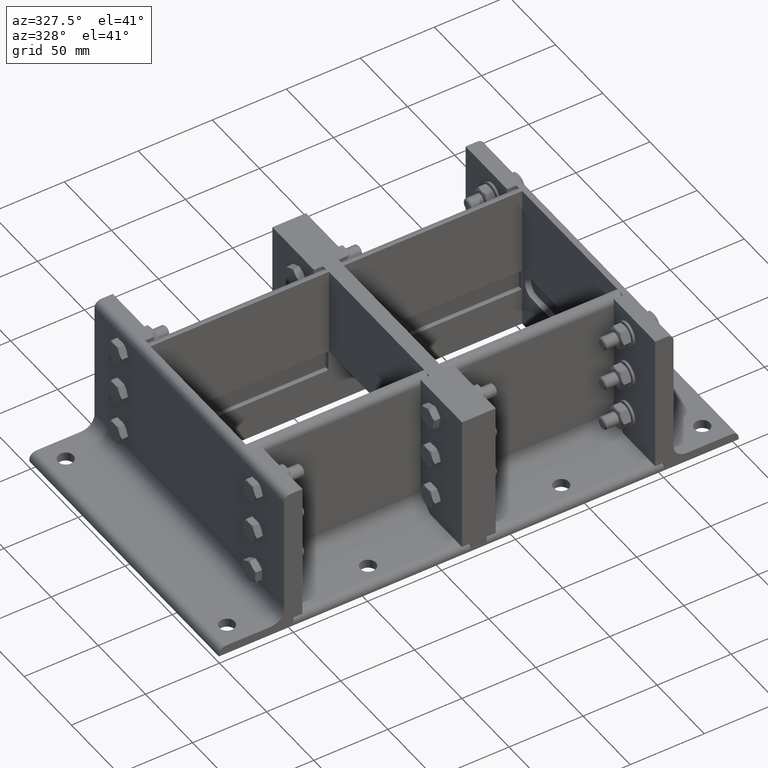
[diagram: clean part render]
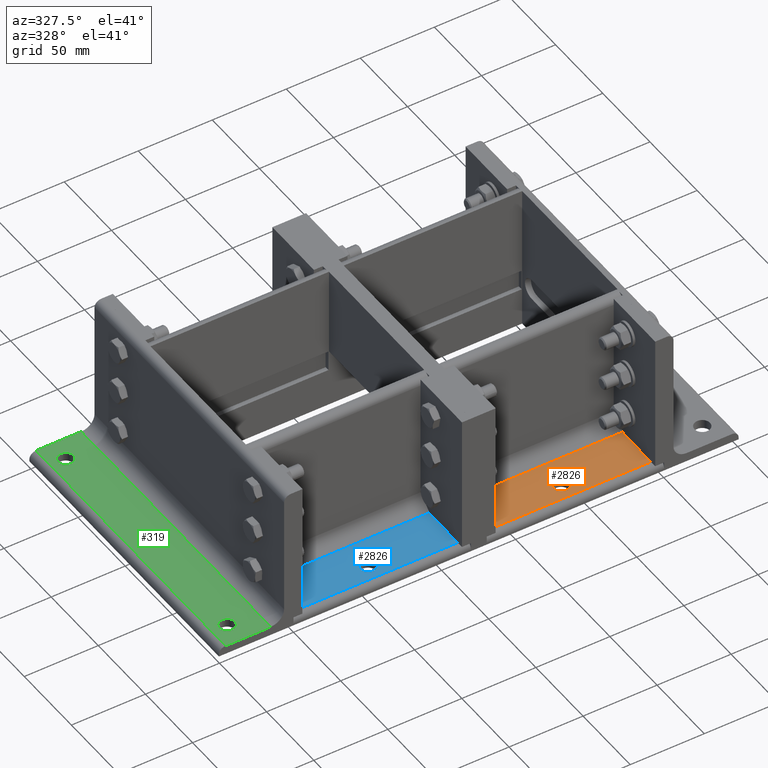
[diagram: same view with three faces highlighted in distinct colors, each labeled with its STEP entity id]
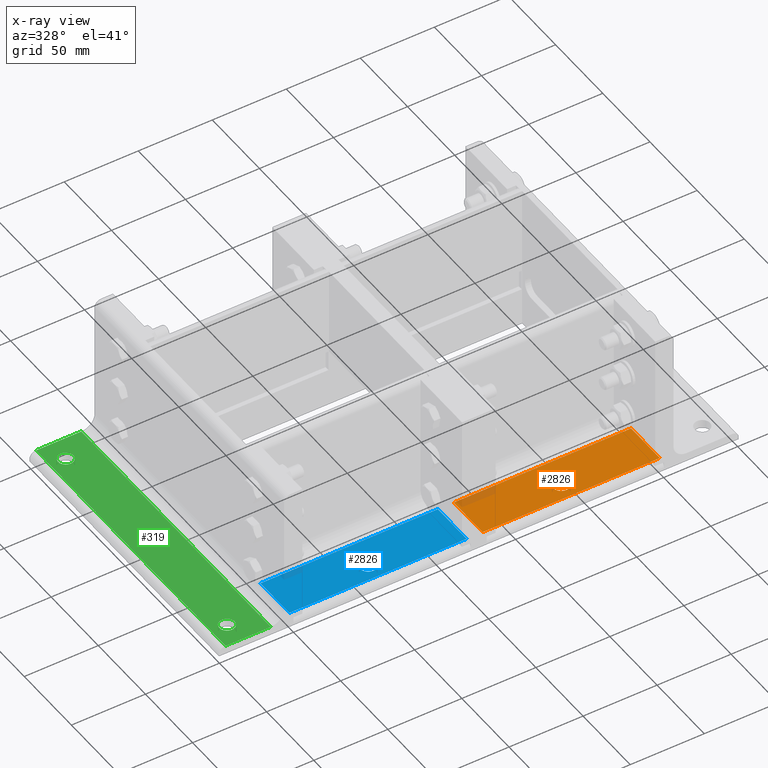
[diagram: x-ray of the same camera — body ghosted, the three highlighted faces saturated]
A machine part, auxiliary view with three faces highlighted in distinct colors.
The next image is the same camera in x-ray (body ghosted, the three faces saturated) — at least one of them is partly hidden behind the body in this view.
Their STEP definitions:

[orange] entity #2826 — the highlighted planar face has unit normal (-0, 0, 1).
#2527=CARTESIAN_POINT('',(34.250000000000007,59.900000000000006,-9.325873E-016));
#2528=VERTEX_POINT('',#2527);
#2529=CARTESIAN_POINT('',(29.000000000000007,59.900000000000006,0.0));
#2530=DIRECTION('',(0.0,0.0,-1.0));
#2531=DIRECTION('',(-1.0,0.0,0.0));
#2532=AXIS2_PLACEMENT_3D('',#2529,#2530,#2531);
#2533=CIRCLE('',#2532,5.25);
#2534=EDGE_CURVE('',#2528,#2528,#2533,.T.);
#2693=CARTESIAN_POINT('',(9.0,119.80000000000001,-2.753479E-015));
#2694=VERTEX_POINT('',#2693);
#2702=CARTESIAN_POINT('',(39.5,119.80000000000001,-1.208471E-014));
#2703=VERTEX_POINT('',#2702);
#2704=CARTESIAN_POINT('',(8.999999999999993,119.80000000000001,-2.753479E-015));
#2705=DIRECTION('',(1.0,0.0,0.0));
#2706=VECTOR('',#2705,30.500000000000007);
#2707=LINE('',#2704,#2706);
#2708=EDGE_CURVE('',#2694,#2703,#2707,.T.);
#2775=CARTESIAN_POINT('',(9.0,0.0,-2.753479E-015));
#2776=VERTEX_POINT('',#2775);
#2784=CARTESIAN_POINT('',(9.0,0.0,-2.220446E-015));
#2785=DIRECTION('',(0.0,1.0,0.0));
#2786=VECTOR('',#2785,119.80000000000001);
#2787=LINE('',#2784,#2786);
#2788=EDGE_CURVE('',#2776,#2694,#2787,.T.);
#2800=CARTESIAN_POINT('',(0.0,0.0,1.972152E-030));
#2801=DIRECTION('',(0.0,0.0,1.0));
#2802=DIRECTION('',(1.0,0.0,0.0));
#2803=AXIS2_PLACEMENT_3D('',#2800,#2801,#2802);
#2804=PLANE('',#2803);
#2805=ORIENTED_EDGE('',*,*,#2788,.F.);
#2806=CARTESIAN_POINT('',(39.5,0.0,-1.208471E-014));
#2807=VERTEX_POINT('',#2806);
#2808=CARTESIAN_POINT('',(39.5,0.0,-1.208471E-014));
#2809=DIRECTION('',(-1.0,0.0,0.0));
#2810=VECTOR('',#2809,30.500000000000007);
#2811=LINE('',#2808,#2810);
#2812=EDGE_CURVE('',#2807,#2776,#2811,.T.);
#2813=ORIENTED_EDGE('',*,*,#2812,.F.);
#2814=CARTESIAN_POINT('',(39.5,119.80000000000001,-1.221245E-014));
#2815=DIRECTION('',(0.0,-1.0,0.0));
#2816=VECTOR('',#2815,119.80000000000001);
#2817=LINE('',#2814,#2816);
#2818=EDGE_CURVE('',#2703,#2807,#2817,.T.);
#2819=ORIENTED_EDGE('',*,*,#2818,.F.);
#2820=ORIENTED_EDGE('',*,*,#2708,.F.);
#2821=EDGE_LOOP('',(#2805,#2813,#2819,#2820));
#2822=FACE_OUTER_BOUND('',#2821,.T.);
#2823=ORIENTED_EDGE('',*,*,#2534,.T.);
#2824=EDGE_LOOP('',(#2823));
#2825=FACE_BOUND('',#2824,.T.);
#2826=ADVANCED_FACE('',(#2822,#2825),#2804,.T.);

[blue] entity #2826 — the highlighted planar face has unit normal (-0, 0, 1).
#2527=CARTESIAN_POINT('',(34.250000000000007,59.900000000000006,-9.325873E-016));
#2528=VERTEX_POINT('',#2527);
#2529=CARTESIAN_POINT('',(29.000000000000007,59.900000000000006,0.0));
#2530=DIRECTION('',(0.0,0.0,-1.0));
#2531=DIRECTION('',(-1.0,0.0,0.0));
#2532=AXIS2_PLACEMENT_3D('',#2529,#2530,#2531);
#2533=CIRCLE('',#2532,5.25);
#2534=EDGE_CURVE('',#2528,#2528,#2533,.T.);
#2693=CARTESIAN_POINT('',(9.0,119.80000000000001,-2.753479E-015));
#2694=VERTEX_POINT('',#2693);
#2702=CARTESIAN_POINT('',(39.5,119.80000000000001,-1.208471E-014));
#2703=VERTEX_POINT('',#2702);
#2704=CARTESIAN_POINT('',(8.999999999999993,119.80000000000001,-2.753479E-015));
#2705=DIRECTION('',(1.0,0.0,0.0));
#2706=VECTOR('',#2705,30.500000000000007);
#2707=LINE('',#2704,#2706);
#2708=EDGE_CURVE('',#2694,#2703,#2707,.T.);
#2775=CARTESIAN_POINT('',(9.0,0.0,-2.753479E-015));
#2776=VERTEX_POINT('',#2775);
#2784=CARTESIAN_POINT('',(9.0,0.0,-2.220446E-015));
#2785=DIRECTION('',(0.0,1.0,0.0));
#2786=VECTOR('',#2785,119.80000000000001);
#2787=LINE('',#2784,#2786);
#2788=EDGE_CURVE('',#2776,#2694,#2787,.T.);
#2800=CARTESIAN_POINT('',(0.0,0.0,1.972152E-030));
#2801=DIRECTION('',(0.0,0.0,1.0));
#2802=DIRECTION('',(1.0,0.0,0.0));
#2803=AXIS2_PLACEMENT_3D('',#2800,#2801,#2802);
#2804=PLANE('',#2803);
#2805=ORIENTED_EDGE('',*,*,#2788,.F.);
#2806=CARTESIAN_POINT('',(39.5,0.0,-1.208471E-014));
#2807=VERTEX_POINT('',#2806);
#2808=CARTESIAN_POINT('',(39.5,0.0,-1.208471E-014));
#2809=DIRECTION('',(-1.0,0.0,0.0));
#2810=VECTOR('',#2809,30.500000000000007);
#2811=LINE('',#2808,#2810);
#2812=EDGE_CURVE('',#2807,#2776,#2811,.T.);
#2813=ORIENTED_EDGE('',*,*,#2812,.F.);
#2814=CARTESIAN_POINT('',(39.5,119.80000000000001,-1.221245E-014));
#2815=DIRECTION('',(0.0,-1.0,0.0));
#2816=VECTOR('',#2815,119.80000000000001);
#2817=LINE('',#2814,#2816);
#2818=EDGE_CURVE('',#2703,#2807,#2817,.T.);
#2819=ORIENTED_EDGE('',*,*,#2818,.F.);
#2820=ORIENTED_EDGE('',*,*,#2708,.F.);
#2821=EDGE_LOOP('',(#2805,#2813,#2819,#2820));
#2822=FACE_OUTER_BOUND('',#2821,.T.);
#2823=ORIENTED_EDGE('',*,*,#2534,.T.);
#2824=EDGE_LOOP('',(#2823));
#2825=FACE_BOUND('',#2824,.T.);
#2826=ADVANCED_FACE('',(#2822,#2825),#2804,.T.);

[green] entity #319 — the highlighted planar face has unit normal (-0, -0, 1).
#190=CARTESIAN_POINT('',(29.749999999999993,15.0,6.000000000000004));
#191=VERTEX_POINT('',#190);
#192=CARTESIAN_POINT('',(34.999999999999993,15.0,6.000000000000004));
#193=DIRECTION('',(0.0,0.0,-1.0));
#194=DIRECTION('',(1.0,0.0,0.0));
#195=AXIS2_PLACEMENT_3D('',#192,#193,#194);
#196=CIRCLE('',#195,5.25);
#197=EDGE_CURVE('',#191,#191,#196,.T.);
#218=CARTESIAN_POINT('',(29.75,186.0,6.000000000000004));
#219=VERTEX_POINT('',#218);
#220=CARTESIAN_POINT('',(35.0,186.0,6.000000000000004));
#221=DIRECTION('',(0.0,0.0,-1.0));
#222=DIRECTION('',(1.0,0.0,0.0));
#223=AXIS2_PLACEMENT_3D('',#220,#221,#222);
#224=CIRCLE('',#223,5.25);
#225=EDGE_CURVE('',#219,#219,#224,.T.);
#248=CARTESIAN_POINT('',(15.0,0.0,6.000000000000001));
#249=VERTEX_POINT('',#248);
#257=CARTESIAN_POINT('',(15.0,201.0,6.000000000000001));
#258=VERTEX_POINT('',#257);
#259=CARTESIAN_POINT('',(14.999999999999998,0.0,6.000000000000001));
#260=DIRECTION('',(0.0,1.0,0.0));
#261=VECTOR('',#260,201.0);
#262=LINE('',#259,#261);
#263=EDGE_CURVE('',#249,#258,#262,.T.);
#283=CARTESIAN_POINT('',(5.999999999999996,0.0,6.000000000000004));
#284=DIRECTION('',(0.0,0.0,1.0));
#285=DIRECTION('',(1.0,0.0,0.0));
#286=AXIS2_PLACEMENT_3D('',#283,#284,#285);
#287=PLANE('',#286);
#288=ORIENTED_EDGE('',*,*,#263,.F.);
#289=CARTESIAN_POINT('',(45.499999999999986,0.0,5.999999999999991));
#290=VERTEX_POINT('',#289);
#291=CARTESIAN_POINT('',(45.499999999999993,0.0,5.999999999999991));
#292=DIRECTION('',(-1.0,0.0,0.0));
#293=VECTOR('',#292,30.499999999999993);
#294=LINE('',#291,#293);
#295=EDGE_CURVE('',#290,#249,#294,.T.);
#296=ORIENTED_EDGE('',*,*,#295,.F.);
#297=CARTESIAN_POINT('',(45.499999999999986,201.0,5.999999999999991));
#298=VERTEX_POINT('',#297);
#299=CARTESIAN_POINT('',(45.499999999999986,201.0,5.999999999999991));
#300=DIRECTION('',(0.0,-1.0,0.0));
#301=VECTOR('',#300,201.0);
#302=LINE('',#299,#301);
#303=EDGE_CURVE('',#298,#290,#302,.T.);
#304=ORIENTED_EDGE('',*,*,#303,.F.);
#305=CARTESIAN_POINT('',(15.0,201.0,6.0));
#306=DIRECTION('',(1.0,0.0,0.0));
#307=VECTOR('',#306,30.499999999999993);
#308=LINE('',#305,#307);
#309=EDGE_CURVE('',#258,#298,#308,.T.);
#310=ORIENTED_EDGE('',*,*,#309,.F.);
#311=EDGE_LOOP('',(#288,#296,#304,#310));
#312=FACE_OUTER_BOUND('',#311,.T.);
#313=ORIENTED_EDGE('',*,*,#197,.T.);
#314=EDGE_LOOP('',(#313));
#315=FACE_BOUND('',#314,.T.);
#316=ORIENTED_EDGE('',*,*,#225,.T.);
#317=EDGE_LOOP('',(#316));
#318=FACE_BOUND('',#317,.T.);
#319=ADVANCED_FACE('',(#312,#315,#318),#287,.T.);